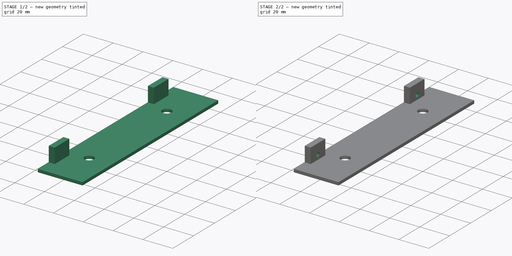
[diagram: build sequence overview — one tinted view per stage of 2, left to right]
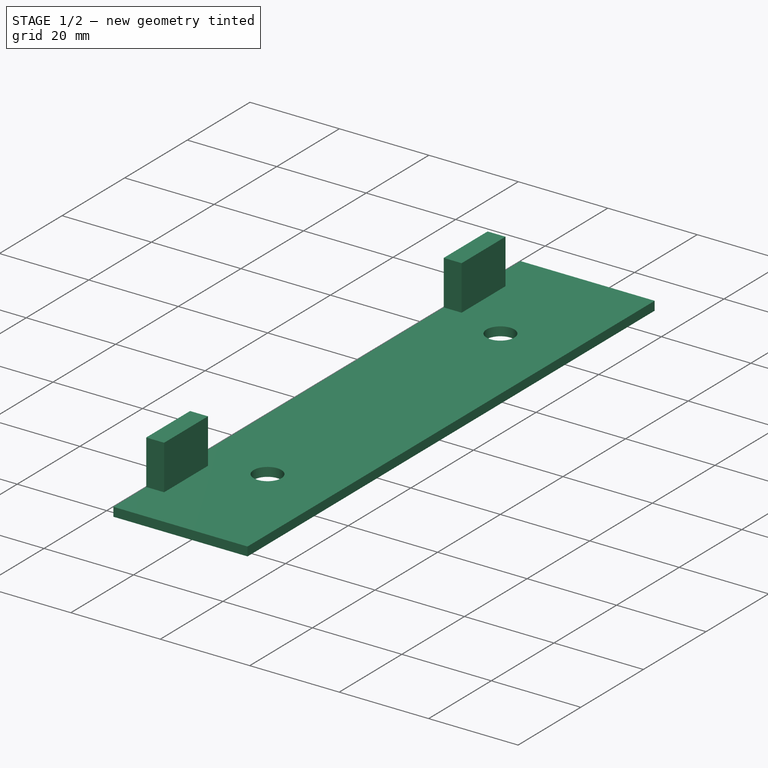
[diagram: stage 1 of 2 — iso view after this stage's code; geometry added in this stage tinted green]
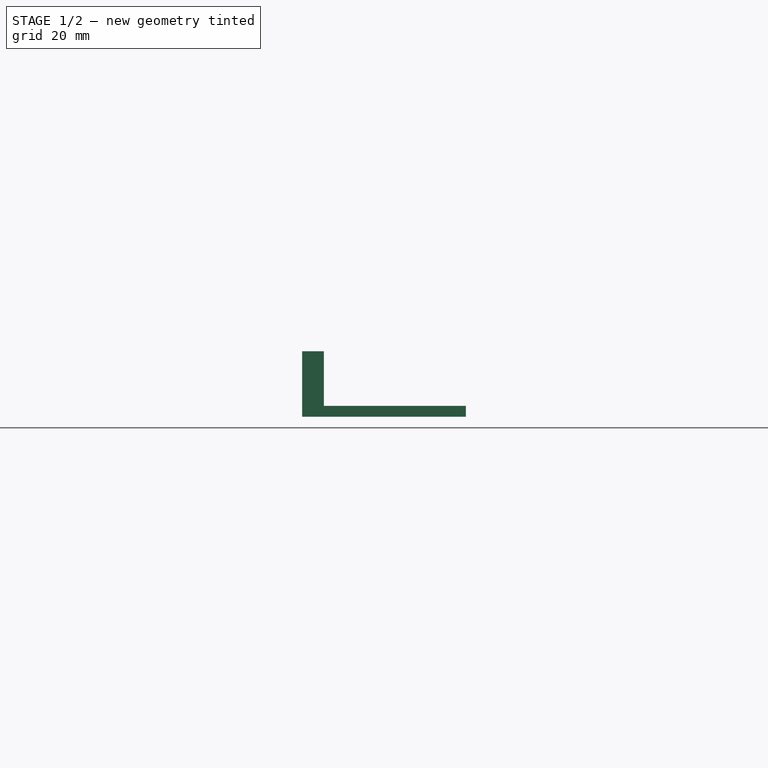
[diagram: stage 1 of 2 — front view after this stage's code; geometry added in this stage tinted green]
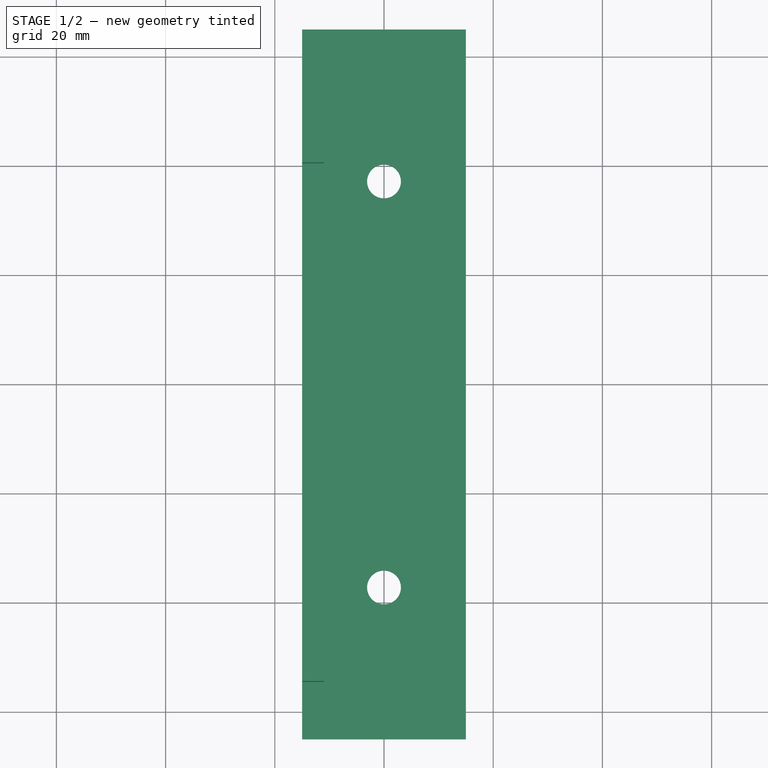
[diagram: stage 1 of 2 — top view after this stage's code; geometry added in this stage tinted green]
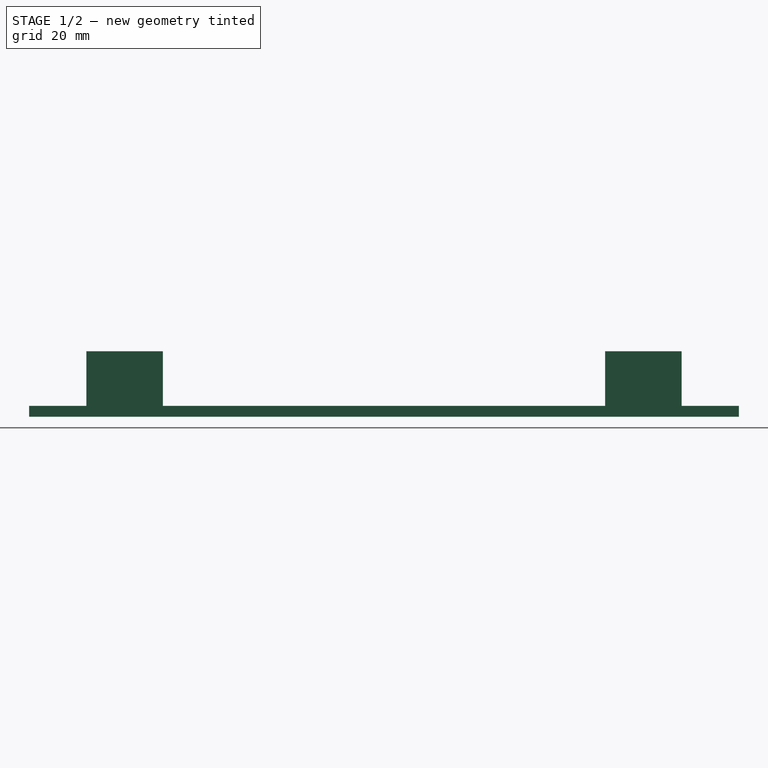
[diagram: stage 1 of 2 — right view after this stage's code; geometry added in this stage tinted green]
FCSTD DOCUMENT  (FreeCAD 0.21R33668 +7 (Git))
Label: antennaPlate
License: All rights reserved
LicenseURL: http://en.wikipedia.org/wiki/All_rights_reserved
objects: Sketcher::SketchObject×3, PartDesign::Pad×2, PartDesign::Pocket×1, PartDesign::Body×1
note: 10 computed .brp shape members not serialized (recipe doc carries the construction recipe); baked Part::Feature solids carry a one-line shape summary decoded from their .brp

FEATURE [Sketcher::SketchObject] Sketch
  FullyConstrained = false
  MapMode = 5
  Support = -> [XY_Plane]
  sketch-geometry (6):
    g0: LineSegment StartX=-15 StartY=65 StartZ=0 EndX=15 EndY=65 EndZ=0
    g1: LineSegment StartX=15 StartY=65 StartZ=0 EndX=15 EndY=-65 EndZ=0
    g2: LineSegment StartX=15 StartY=-65 StartZ=0 EndX=-15 EndY=-65 EndZ=0
    g3: LineSegment StartX=-15 StartY=-65 StartZ=0 EndX=-15 EndY=65 EndZ=0
    g4: Circle CenterX=0 CenterY=-37.1845 CenterZ=0 NormalX=0 NormalY=0 NormalZ=1 AngleXU=0 Radius=3.1
    g5: Circle CenterX=0 CenterY=37.1845 CenterZ=0 NormalX=0 NormalY=0 NormalZ=1 AngleXU=0 Radius=3.1
  constraints (15):
    c: Coincident(g0,g1)
    c: Coincident(g1,g2)
    c: Coincident(g2,g3)
    c: Coincident(g3,g0)
    c: Horizontal(g0)
    c: Horizontal(g2)
    c: Vertical(g1)
    c: Vertical(g3)
    c: DistanceY(g1,g1) = 130
    c: Symmetric(g0,g1,g-1)
    c: DistanceX(g0,g0) = 30
    c: PointOnObject(g4,g-2)
    c: Diameter(g4) = 6.2
    c: Diameter(g5) = 6.2
    c: Symmetric(g4,g5,g-1)
FEATURE [PartDesign::Pad] Pad
  Direction = (0,0,1)
  Length = 2
  Length2 = 10
  Profile = -> Sketch
  ReferenceAxis = -> Sketch [N_Axis]
  Type = 0
FEATURE [Sketcher::SketchObject] Sketch001
  ExternalGeometry = -> [Pad]
  FullyConstrained = true
  MapMode = 5
  Placement = pos=(0,0,2) rot=(0,0,1;0rad)
  Support = -> [Pad]
  sketch-geometry (8):
    g0: LineSegment StartX=-15 StartY=54.5 StartZ=0 EndX=-11 EndY=54.5 EndZ=0
    g1: LineSegment StartX=-11 StartY=54.5 StartZ=0 EndX=-11 EndY=40.5 EndZ=0
    g2: LineSegment StartX=-11 StartY=40.5 StartZ=0 EndX=-15 EndY=40.5 EndZ=0
    g3: LineSegment StartX=-15 StartY=40.5 StartZ=0 EndX=-15 EndY=54.5 EndZ=0
    g4: LineSegment StartX=-15 StartY=-40.5 StartZ=0 EndX=-11 EndY=-40.5 EndZ=0
    g5: LineSegment StartX=-11 StartY=-40.5 StartZ=0 EndX=-11 EndY=-54.5 EndZ=0
    g6: LineSegment StartX=-11 StartY=-54.5 StartZ=0 EndX=-15 EndY=-54.5 EndZ=0
    g7: LineSegment StartX=-15 StartY=-54.5 StartZ=0 EndX=-15 EndY=-40.5 EndZ=0
  constraints (23):
    c: Coincident(g0,g1)
    c: Coincident(g1,g2)
    c: Coincident(g2,g3)
    c: Coincident(g3,g0)
    c: Horizontal(g0)
    c: Horizontal(g2)
    c: Vertical(g1)
    c: Vertical(g3)
    c: PointOnObject(g0,g-3)
    c: Coincident(g4,g5)
    c: Coincident(g5,g6)
    c: Coincident(g6,g7)
    c: Coincident(g7,g4)
    c: Horizontal(g4)
    c: Horizontal(g6)
    c: Vertical(g5)
    c: Vertical(g7)
    c: PointOnObject(g4,g-3)
    c: DistanceY(g2,g0) = 14
    c: DistanceY(g6,g4) = 14
    c: DistanceY(g6,g2) = 95
    c: Symmetric(g1,g4,g-1)
    c: DistanceX(g0,g0) = 4
FEATURE [PartDesign::Pad] Pad001
  BaseFeature = -> Pad
  Direction = (0,0,1)
  Length = 10
  Length2 = 10
  Profile = -> Sketch001
  ReferenceAxis = -> Sketch001 [N_Axis]
  Type = 0
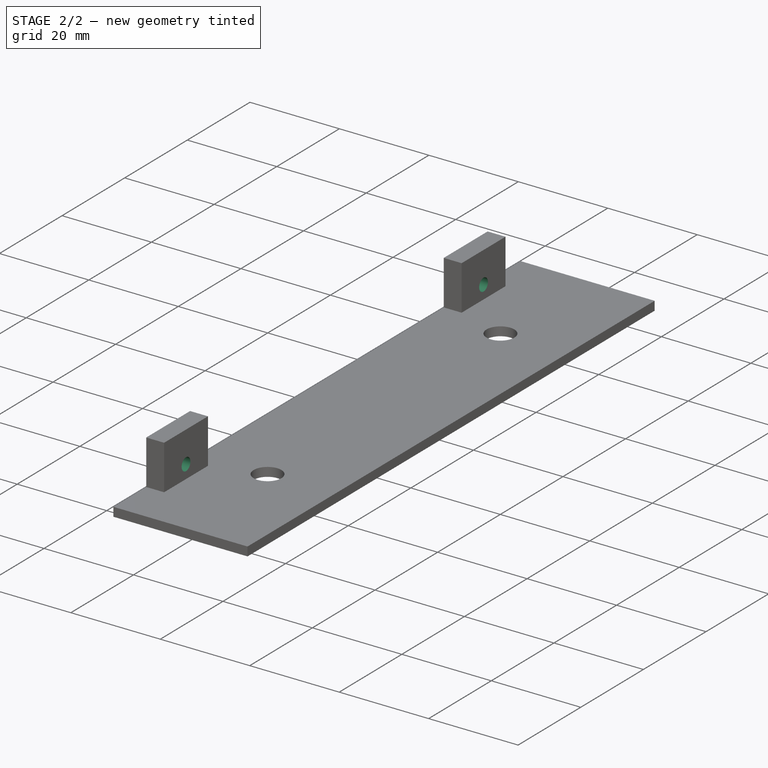
[diagram: stage 2 of 2 — iso view after this stage's code; geometry added in this stage tinted green]
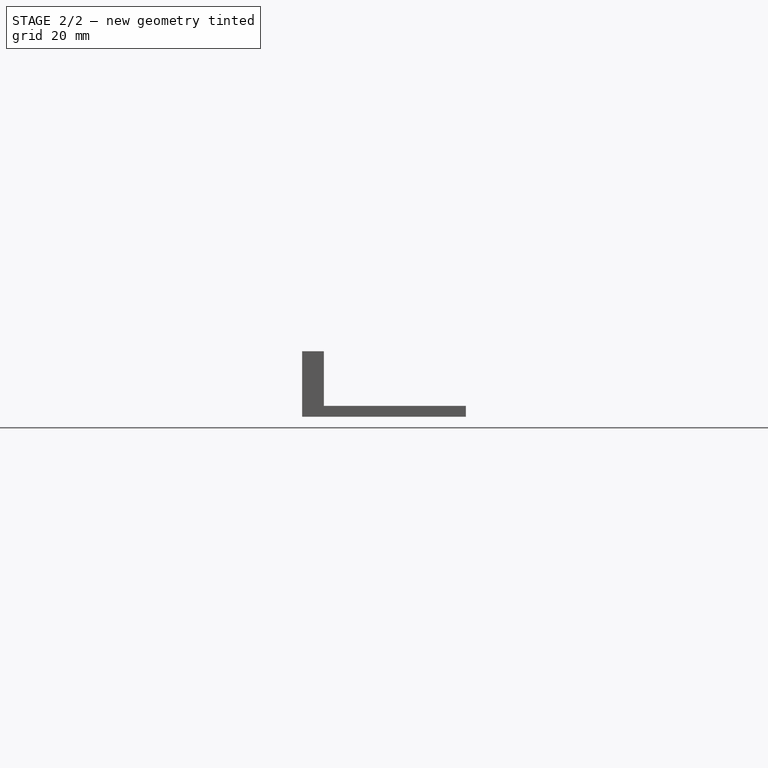
[diagram: stage 2 of 2 — front view after this stage's code; geometry added in this stage tinted green]
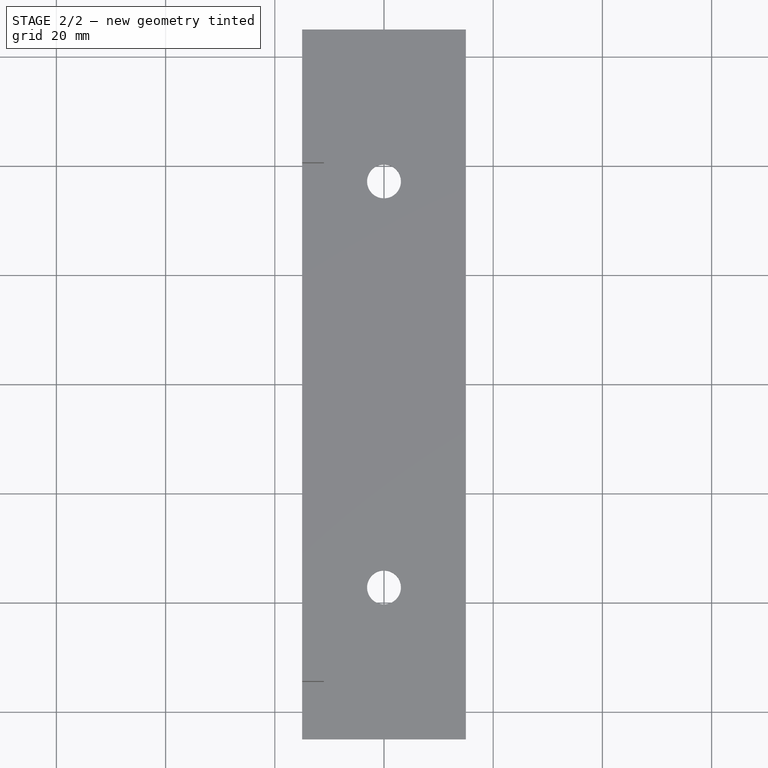
[diagram: stage 2 of 2 — top view after this stage's code; geometry added in this stage tinted green]
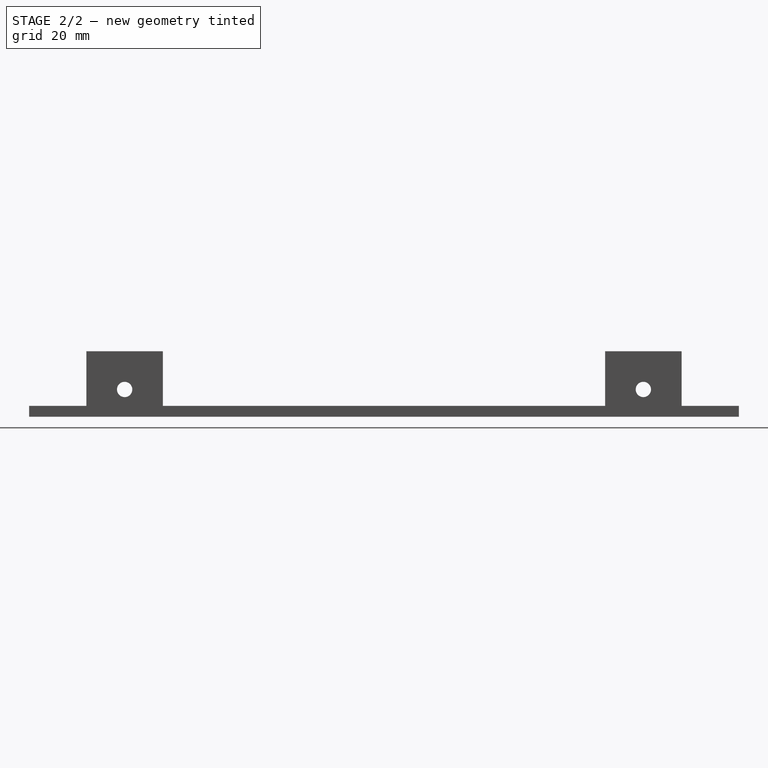
[diagram: stage 2 of 2 — right view after this stage's code; geometry added in this stage tinted green]
FEATURE [Sketcher::SketchObject] Sketch002
  ExternalGeometry = -> [Pad001]
  FullyConstrained = true
  MapMode = 5
  Placement = pos=(-15,0,0) rot=(0.57735,-0.57735,-0.57735;2.0944rad)
  Support = -> [Pad001]
  sketch-geometry (2):
    g0: Circle CenterX=-47.5 CenterY=5 CenterZ=0 NormalX=0 NormalY=0 NormalZ=1 AngleXU=0 Radius=1.4
    g1: Circle CenterX=47.5 CenterY=5 CenterZ=0 NormalX=0 NormalY=0 NormalZ=1 AngleXU=0 Radius=1.4
  constraints (5):
    c: Equal(g1,g0)
    c: Diameter(g1) = 2.8
    c: Symmetric(g0,g1,g-2)
    c: DistanceY(g-1,g0) = 5
    c: DistanceX(g-3,g0) = 7
FEATURE [PartDesign::Pocket] Pocket
  BaseFeature = -> Pad001
  Direction = (1,0,0)
  Length = 5
  Length2 = 5
  Profile = -> Sketch002
  ReferenceAxis = -> Sketch002 [N_Axis]
  Type = 0
FEATURE [PartDesign::Body] Body
  Group = -> [Sketch,Pad,Sketch001,Pad001,Sketch002,Pocket]
  Origin = -> Origin
  Tip = -> Pocket
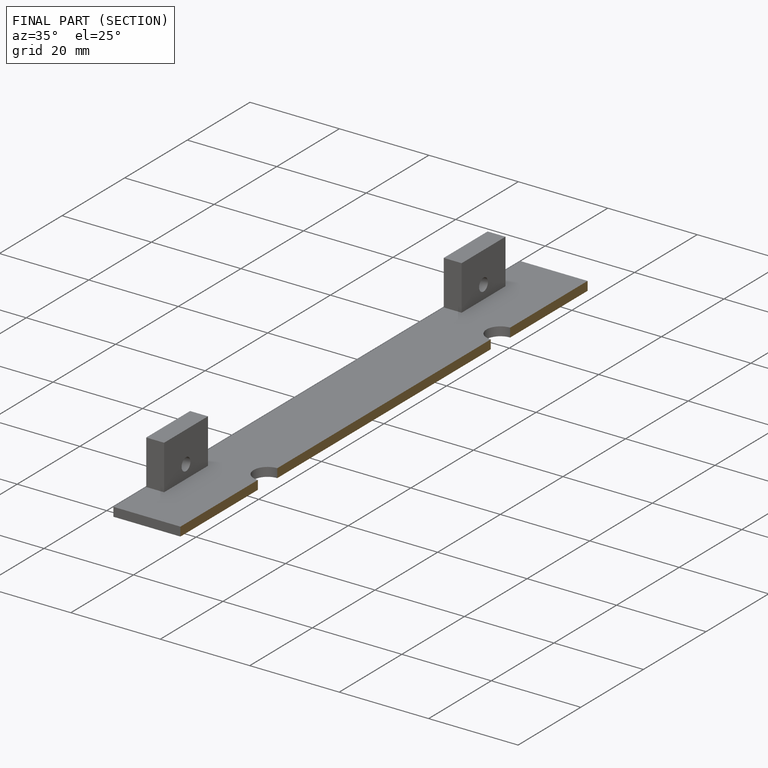
[diagram: finished part — half-section view (interior)]
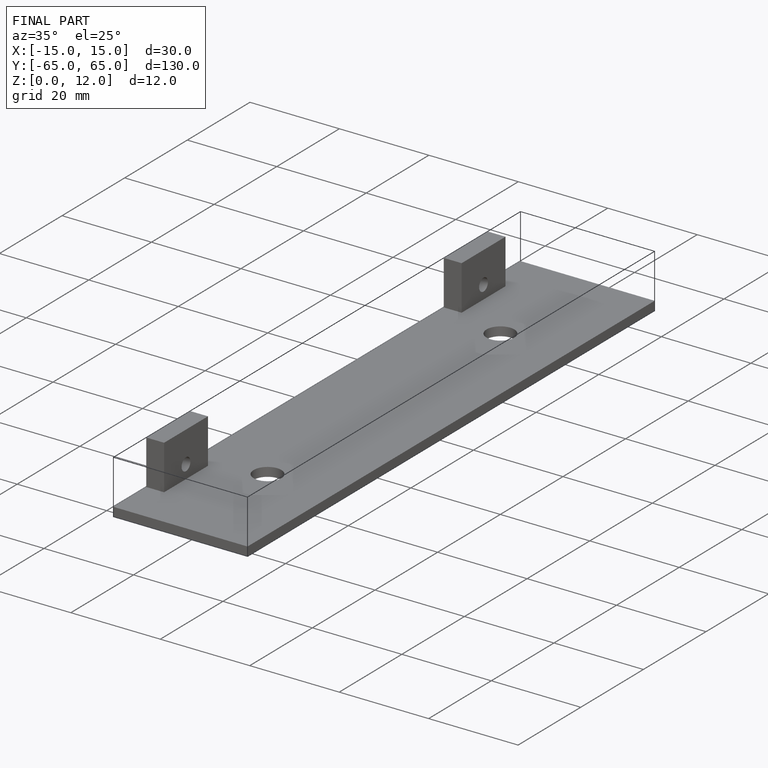
[diagram: finished part — iso view with bounding-box wireframe]
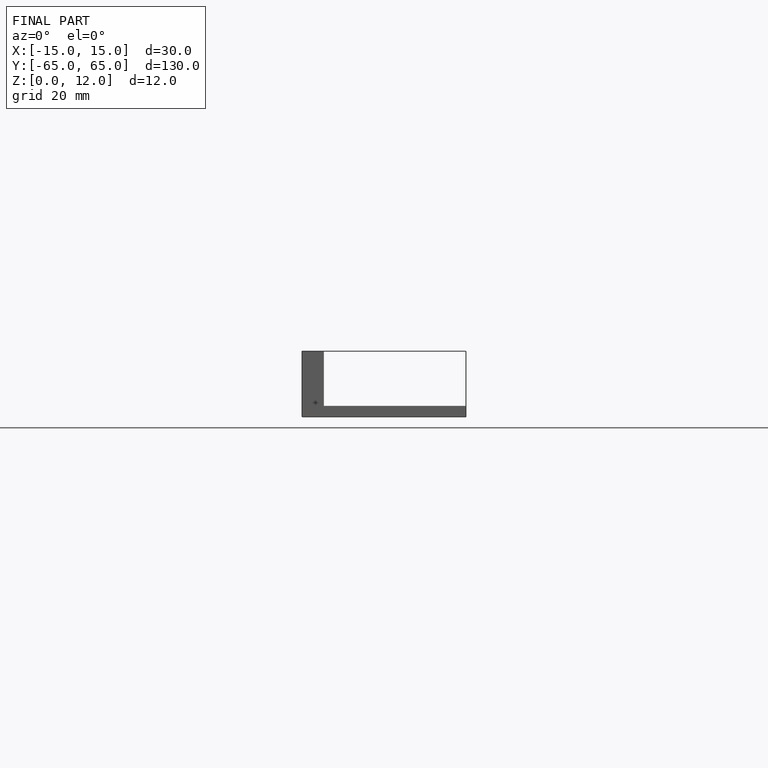
[diagram: finished part — front view with bounding-box wireframe]
